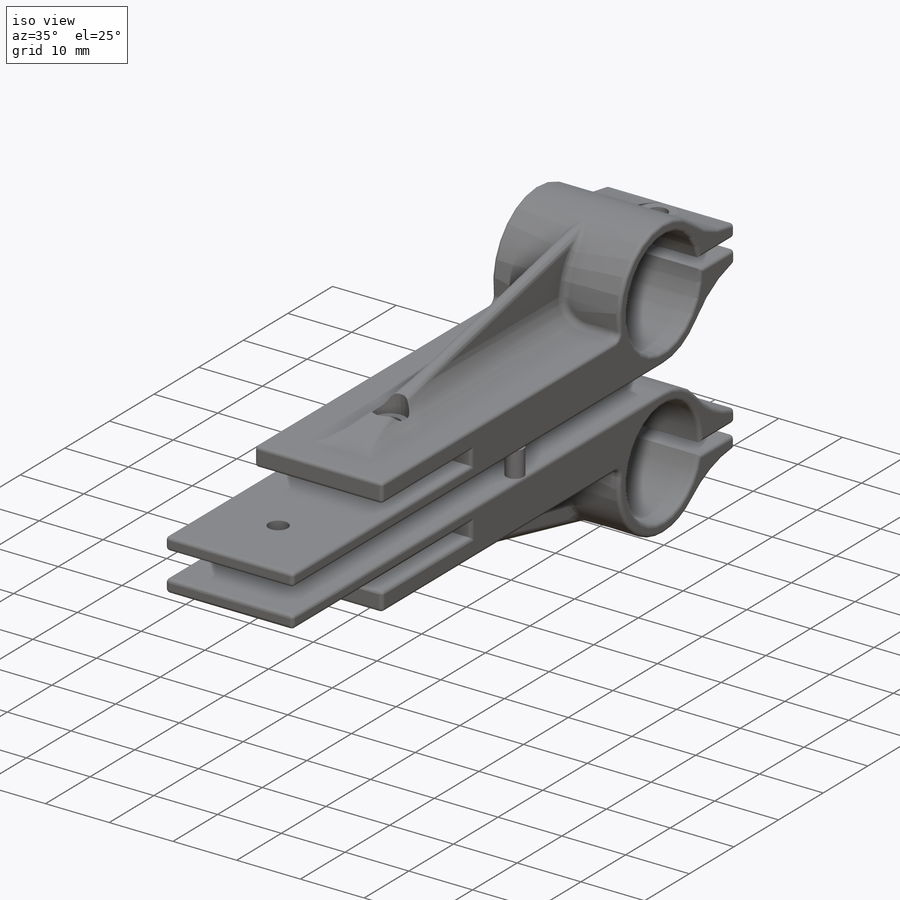
[diagram: iso view]
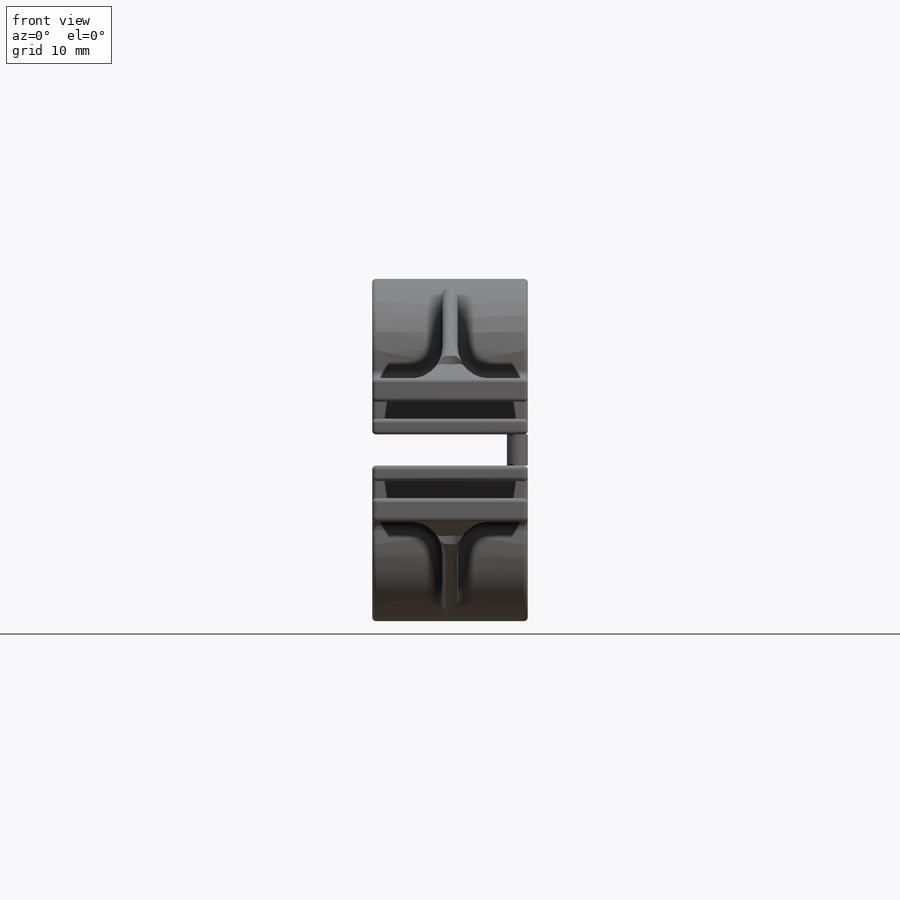
[diagram: front view]
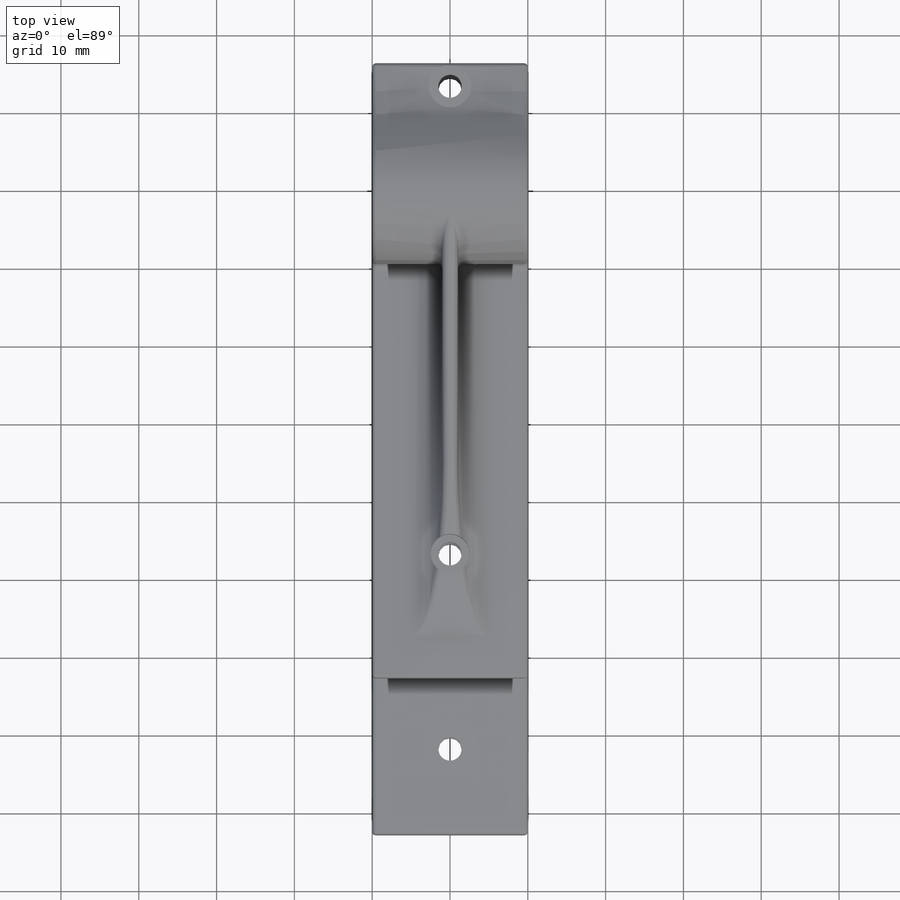
[diagram: top view]
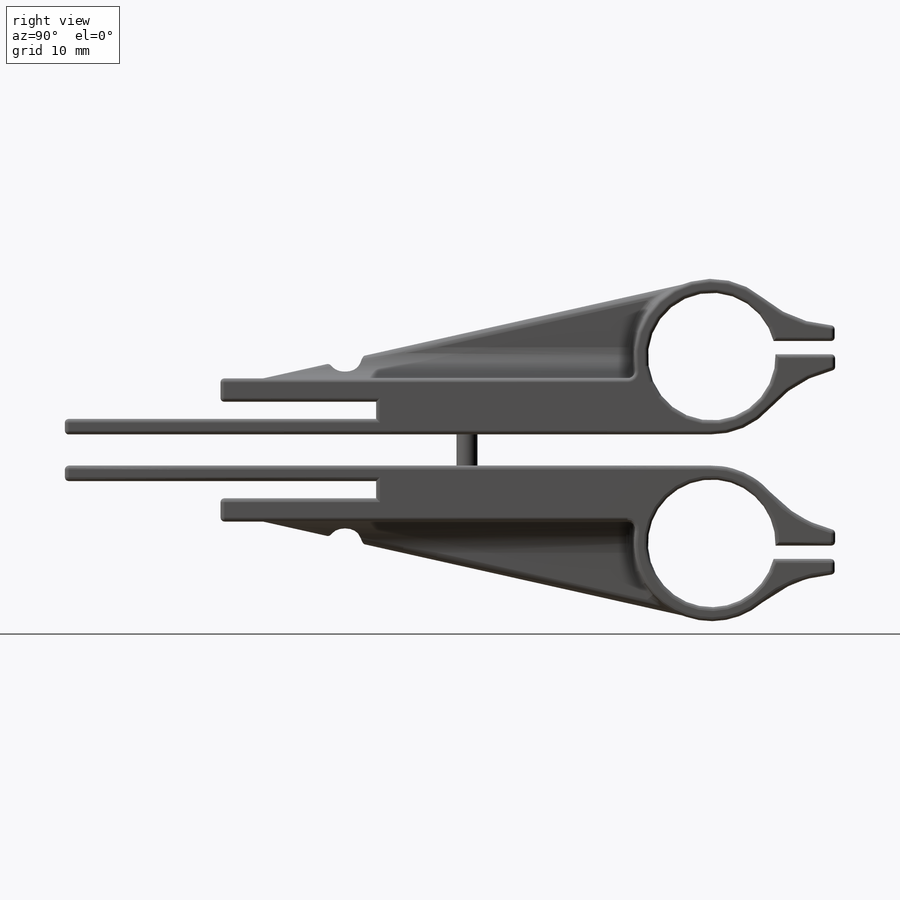
[diagram: right view]
SOLIDWORKS PART (.sldprt)
format: sldprt  version: not decoded by parser v0  size: 763,392 bytes
history: native  units: mm
features: sketch x9, fillet x6, cut_extrude x5, extrude x4, plane x3, material x1, mirror x1 (+10 scaffold rows collapsed)
feature tree (39):
  scaffold x10  (default folders/planes/origin — collapsed)
  material  "Материал <не указан>"
  plane  "Спереди"
  plane  "Сверху"
  plane  "Справа"
  sketch  "Эскиз2"  dims[c1.D1=40.0mm c1.D5=10.0mm c1.D8=16.0mm c1.D11=16.0mm c2.D8=10.0mm c2.D10=8.2mm c3.D8=10.0mm c3.D2=83.0mm c3.D1=2.0mm c3.D3=2.2mm c3.D4=3.0mm c3.D6=40.0mm c3.D7=20.0mm c4.D8=10.0mm c4.D9=2.0mm c4.D10=2.0mm c4.D5=2.0mm c4.D11=15.0mm c4.D12=2.0mm c4.D13=2.0mm c4.D14=2.0mm c4.D15=2.0mm c5.D5=6.0mm c5.D9=~6.632808mm]
  extrude  "Бобышка-Вытянуть4"  Depth=20mm
  sketch  "Эскиз3"  dims[D1=3.0mm D2=10.0mm D3=10.0mm D4=3.0mm D5=3.0mm]
  sketch  "Эскиз4"
  sketch  "Эскиз6"
  fillet  "Скругление2"  Radius=15mm
  cut_extrude  "Вырез-Вытянуть1"  Depth=7mm
  cut_extrude  "Вырез-Вытянуть2"  Depth=5mm
  cut_extrude  "Вырез-Вытянуть3"  Depth=12mm
  sketch  "Эскиз7"  dims[D1=2.0mm D2=9.0mm D3=9.0mm D4=0.0mm D5=5.0mm]
  extrude  "Бобышка-Вытянуть5"  Depth=2mm
  sketch  "Эскиз8"
  extrude  "Бобышка-Вытянуть6"  Depth=2mm
  fillet  "Скругление9"  Radius=4mm
  fillet  "Скругление10"  Radius=1mm
  sketch  "Эскиз9"  dims[D5=3.0mm D6=3.0mm D1=10.0mm D2=10.0mm D3=11.0mm D4=36.0mm]
  cut_extrude  "Вырез-Вытянуть4"  Depth=18mm
  sketch  "Эскиз10"  dims[D1=5.0mm]
  cut_extrude  "Вырез-Вытянуть5"  Depth=13.862849mm
  fillet  "Скругление12"  Radius=0.5mm
  fillet  "Скругление13"  Radius=0.5mm
  fillet  "Скругление14"  Radius=0.5mm
  sketch  "Эскиз13"
  extrude  "Бобышка-Вытянуть9"  Depth=2mm
  mirror  "Зеркальное отражение16"
decode coverage: 20 of 25 modeling features carry decoded parameters
note: ~ marks probable driven/reference dimensions
note: suppression state not decoded; provenance and decode notes live in map.json
